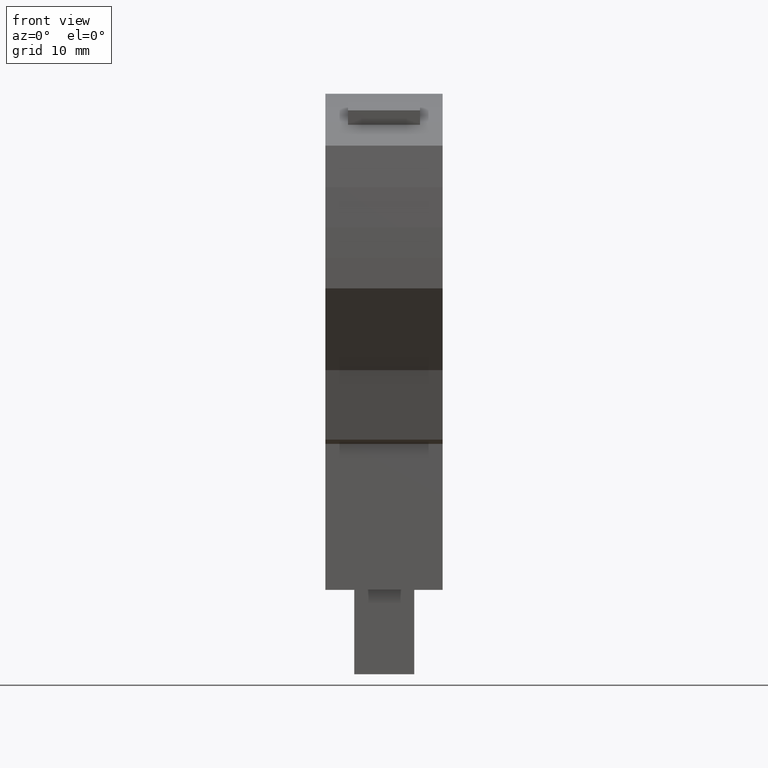
[diagram: clean part render]
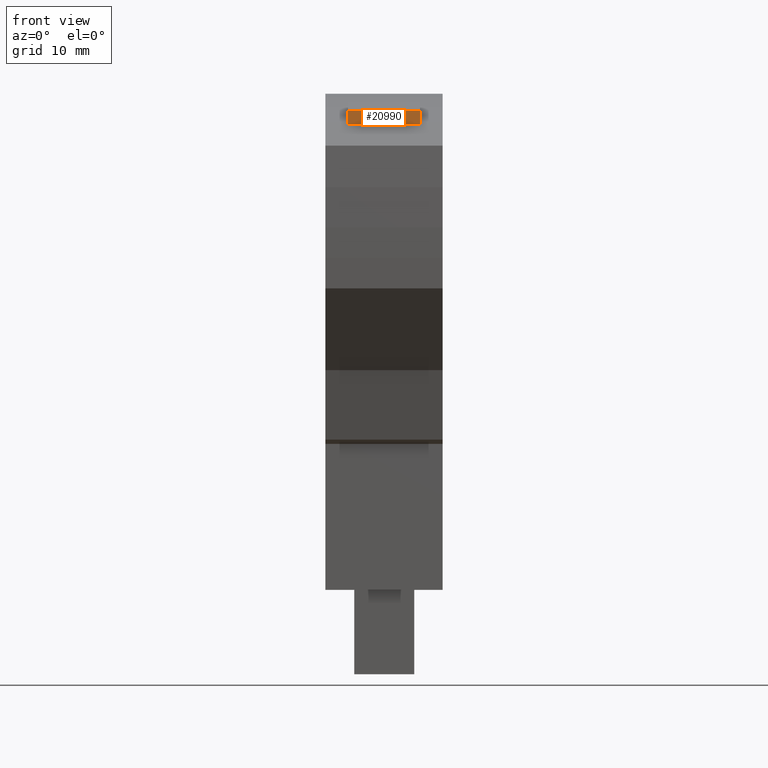
[diagram: same view with one face highlighted and labeled with its STEP entity id]
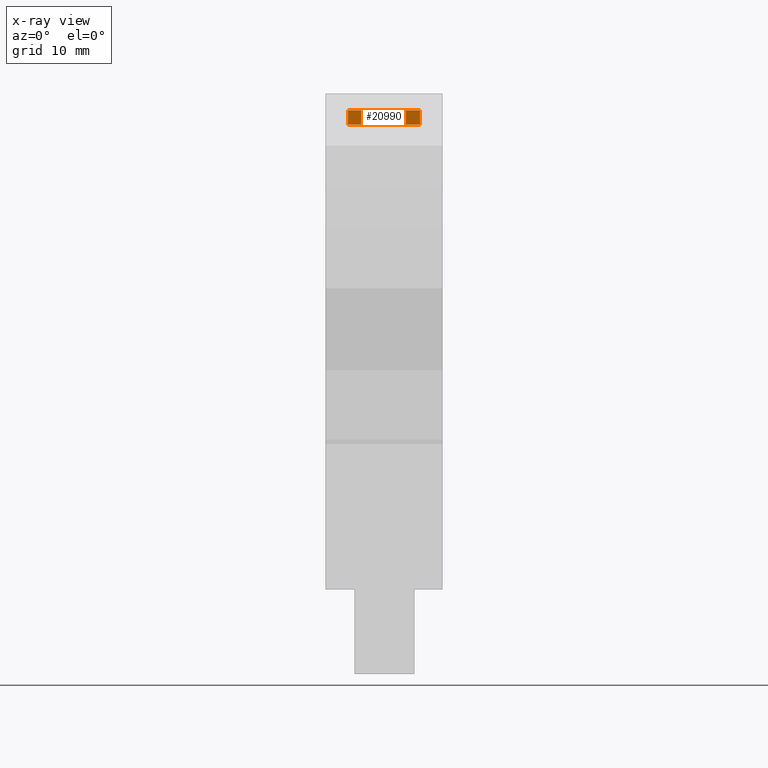
[diagram: x-ray of the same camera — body ghosted, the highlighted face saturated]
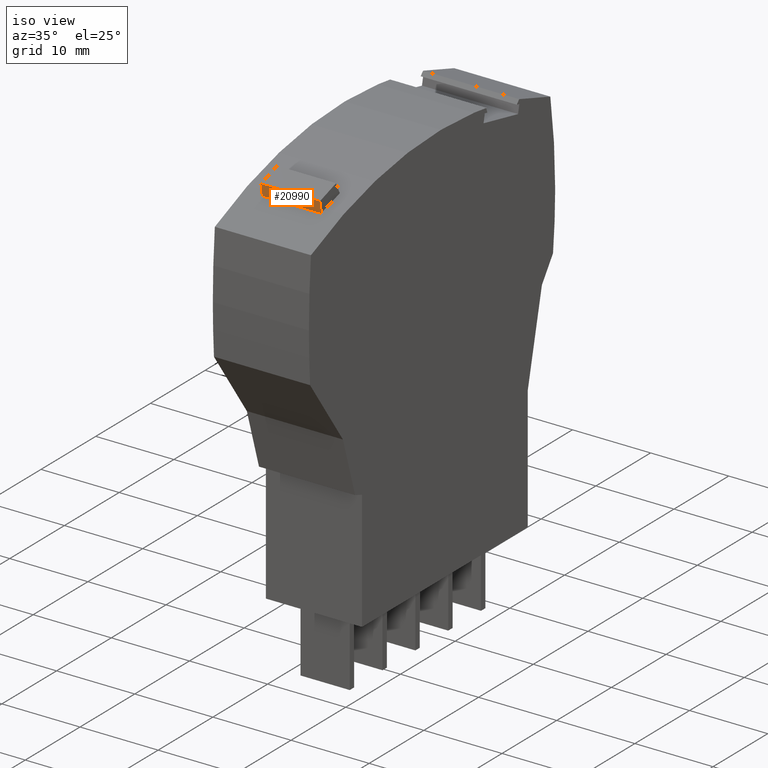
[diagram: same view with one face highlighted and labeled with its STEP entity id]
A machine part, front view. The second image highlights one B-rep face of the part: STEP entity #20990.
The next image is the same camera in x-ray: the body ghosted, the highlighted face saturated — about 0% of this face is hidden behind the body in this view.
A second angle (iso view) of the same face is appended — the face is thin or edge-on in the first view.
In plain terms, the highlighted planar face has unit normal (0, -0.9865, -0.164).
Its self-contained STEP definition (entity closure, byte-faithful):
#5970=CARTESIAN_POINT('',(18.6291712842474,38.3475373100774,
51.2950000001206));
#5980=VERTEX_POINT('',#5970);
#6010=CARTESIAN_POINT('',(18.6291712842474,38.3475373100774,
41.4450000001206));
#6020=DIRECTION('',(0.,0.,-1.));
#6030=VECTOR('',#6020,1.);
#6040=LINE('',#6010,#6030);
#6050=CARTESIAN_POINT('',(18.6291712842474,38.3475373100774,
43.7450000001206));
#6060=VERTEX_POINT('',#6050);
#6070=EDGE_CURVE('',#5980,#6060,#6040,.T.);
#20690=CARTESIAN_POINT('',(18.4095432625224,37.0264002639075,
51.2950000001206));
#20700=DIRECTION('',(0.986461825698848,-0.163991055972257,0.));
#20710=DIRECTION('',(-0.163991055972257,-0.986461825698848,0.));
#20720=AXIS2_PLACEMENT_3D('',#20690,#20700,#20710);
#20730=PLANE('',#20720);
#20740=CARTESIAN_POINT('',(15.8682137410367,21.7394412001692,
51.2950000001206));
#20750=DIRECTION('',(-0.163991055972257,-0.986461825698848,0.));
#20760=VECTOR('',#20750,1.);
#20770=LINE('',#20740,#20760);
#20780=CARTESIAN_POINT('',(18.8798992176221,39.8557508735801,
51.2950000001206));
#20790=VERTEX_POINT('',#20780);
#20800=EDGE_CURVE('',#20790,#5980,#20770,.T.);
#20810=ORIENTED_EDGE('',*,*,#20800,.T.);
#20820=CARTESIAN_POINT('',(18.8798992176221,39.8557508735801,
51.2950000001206));
#20830=DIRECTION('',(0.,0.,-1.));
#20840=VECTOR('',#20830,1.);
#20850=LINE('',#20820,#20840);
#20860=CARTESIAN_POINT('',(18.8798992176221,39.8557508735801,
43.7450000001206));
#20870=VERTEX_POINT('',#20860);
#20880=EDGE_CURVE('',#20790,#20870,#20850,.T.);
#20890=ORIENTED_EDGE('',*,*,#20880,.F.);
#20900=CARTESIAN_POINT('',(15.8682137410367,21.7394412001692,
43.7450000001206));
#20910=DIRECTION('',(-0.163991055972257,-0.986461825698848,0.));
#20920=VECTOR('',#20910,1.);
#20930=LINE('',#20900,#20920);
#20940=EDGE_CURVE('',#20870,#6060,#20930,.T.);
#20950=ORIENTED_EDGE('',*,*,#20940,.F.);
#20960=ORIENTED_EDGE('',*,*,#6070,.T.);
#20970=EDGE_LOOP('',(#20960,#20950,#20890,#20810));
#20980=FACE_OUTER_BOUND('',#20970,.T.);
#20990=ADVANCED_FACE('',(#20980),#20730,.T.);